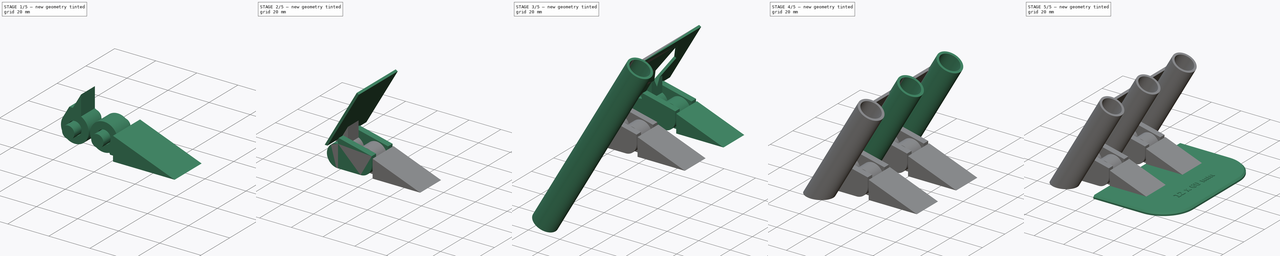
[diagram: build sequence overview — one tinted view per stage of 5, left to right]
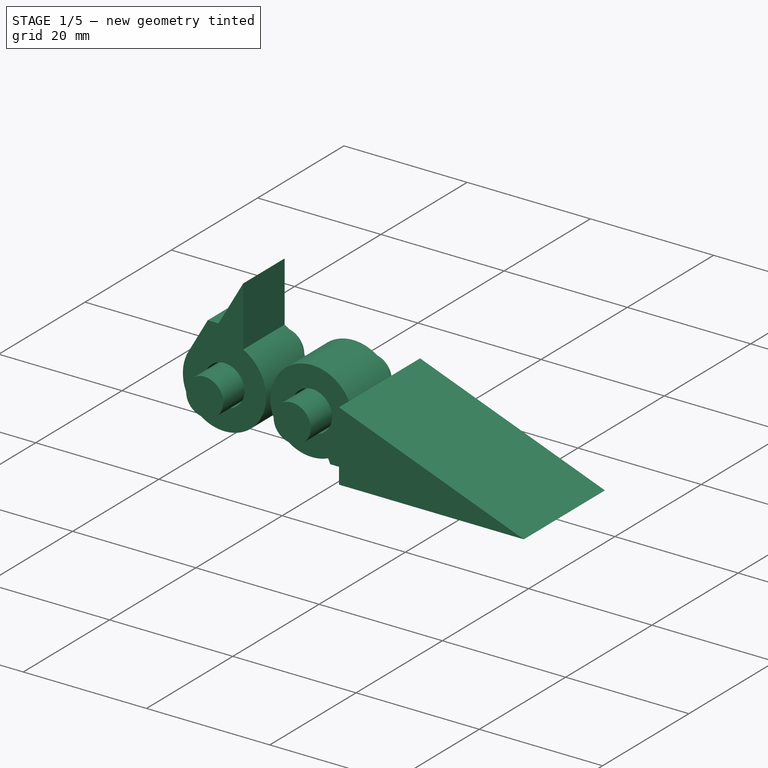
[diagram: stage 1 of 5 — iso view after this stage's code; geometry added in this stage tinted green]
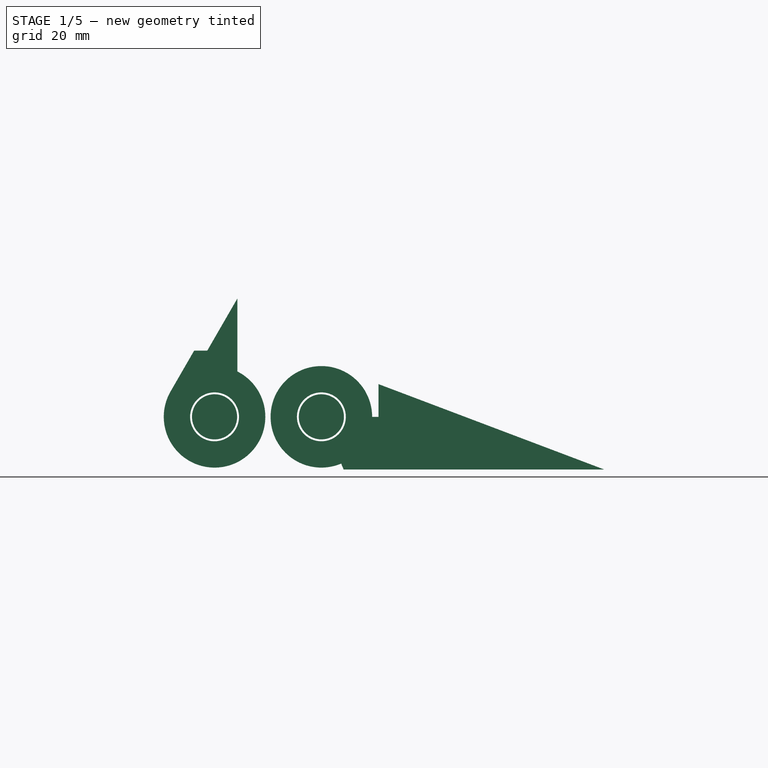
[diagram: stage 1 of 5 — front view after this stage's code; geometry added in this stage tinted green]
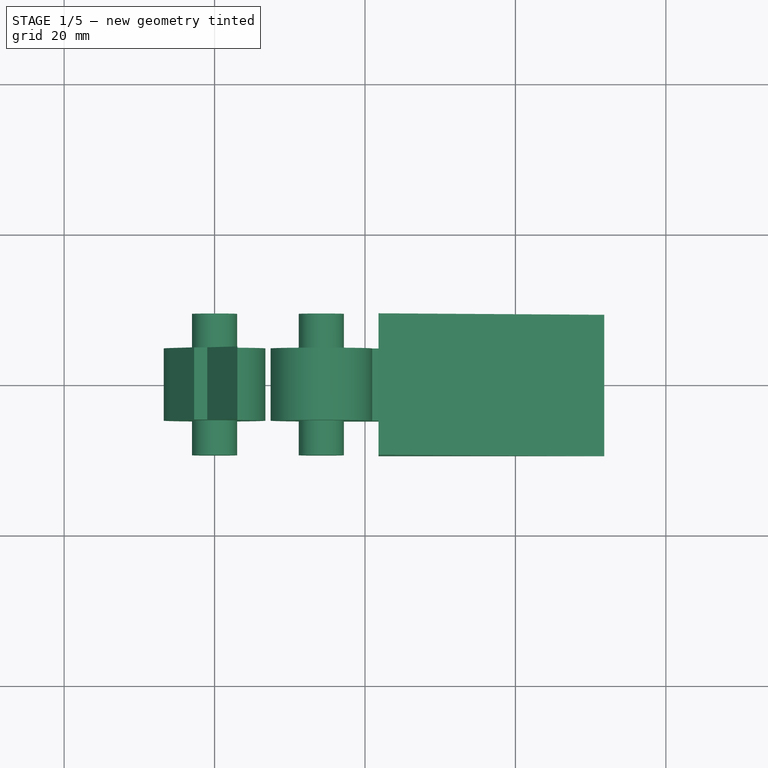
[diagram: stage 1 of 5 — top view after this stage's code; geometry added in this stage tinted green]
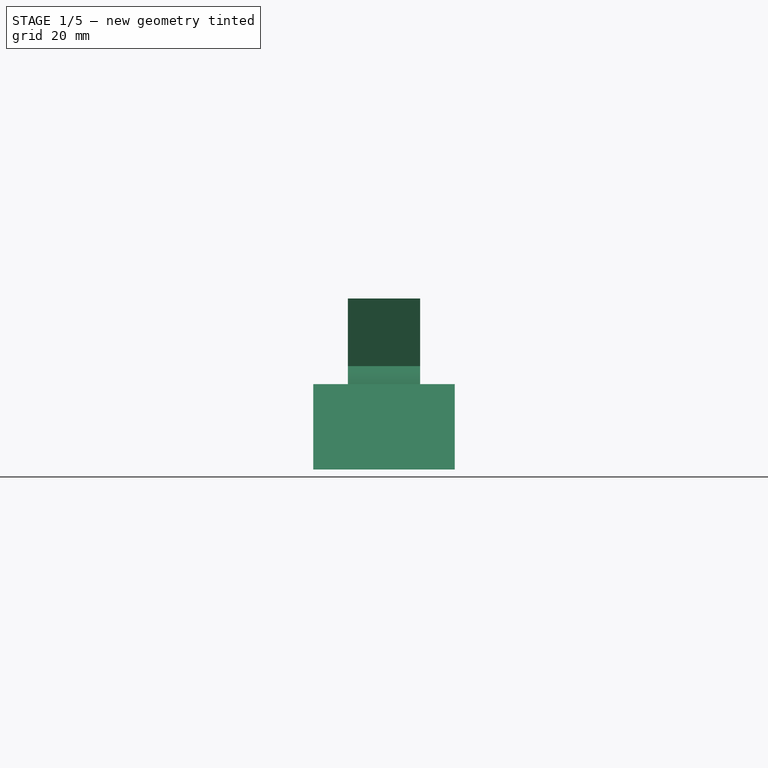
[diagram: stage 1 of 5 — right view after this stage's code; geometry added in this stage tinted green]
FCSTD DOCUMENT  (FreeCAD 1.1R14555 (Git shallow))
Label: DriverStandv2a
License: All rights reserved
LicenseURL: https://en.wikipedia.org/wiki/All_rights_reserved
objects: PartDesign::Pad×10, Sketcher::SketchObject×5, PartDesign::SubShapeBinder×3, PartDesign::Pocket×2, PartDesign::LinearPattern×2, App::Point×1, Spreadsheet::Sheet×1, Part::Part2DObjectPython×1, Part::DatumPlane×1, PartDesign::Chamfer×1, PartDesign::Body×1
note: 58 computed .brp shape members not serialized (recipe doc carries the construction recipe); baked Part::Feature solids carry a one-line shape summary decoded from their .brp

FEATURE [App::Point] Origin001
  Role = Origin
FEATURE [Sketcher::SketchObject] Sketch001  label="MasterSketch"
  ArcFitTolerance = 1e-06
  AttachmentSupport = -> [Origin]
  ExternalTypes = [0]
  FullyConstrained = true
  MakeInternals = false
  MapMode = 5
  Placement = pos=(0,0,0) rot=(1,0,0;1.5708rad)
  expr: .Constraints.TubeSketchOffset = <<params>>.TubeLength - 10 mm
  expr: Constraints[0] = <<params>>.PinInnerDia
  expr: Constraints[118] = <<params>>.StopClearance
  expr: Constraints[119] = <<params>>.HingeOuterDia / 2 + 3 * <<params>>.StopClearance
  expr: Constraints[11] = <<params>>.MinBaseLength
  expr: Constraints[12] = <<params>>.HingeSeparation
  expr: Constraints[135] = <<params>>.WallThickness + 0.7 * <<params>>.StopClearance
  expr: Constraints[14] = <<params>>.HingeOuterGap
  expr: Constraints[22] = <<params>>.HingeOuterDia
  expr: Constraints[36] = 2 * <<params>>.StopClearance
  expr: Constraints[51] = <<params>>.PinOuterDia
  expr: Constraints[52] = <<params>>.TubeAngle
  expr: Constraints[64] = <<params>>.HingeOuterDia / 2
  expr: Constraints[6] = <<params>>.HingeInnerDia
  expr: Constraints[79] = <<params>>.TubeOutsideDia
  expr: Constraints[84] = <<params>>.WallThickness
  expr: Constraints[88] = 90 + <<params>>.TubeAngle
  expr: Constraints[8] = <<params>>.PinOuterDia + 0.5 mm
  sketch-geometry (49):
    g0: Circle CenterX=0 CenterY=7 CenterZ=0 NormalX=0 NormalY=0 NormalZ=1 AngleXU=0 Radius=3.25
    g1: Circle CenterX=14.2 CenterY=7 CenterZ=0 NormalX=0 NormalY=0 NormalZ=1 AngleXU=0 Radius=3.25
    g2: LineSegment StartX=17.1597 StartY=0 StartZ=0 EndX=21.8 EndY=0 EndZ=0
    g3: LineSegment StartX=21.8 StartY=11.3486 StartZ=0 EndX=51.8 EndY=0 EndZ=0
    g4: LineSegment StartX=-5.84567 StartY=10.375 StartZ=0 EndX=-2.71355 EndY=15.8 EndZ=0
    g5: Circle CenterX=0 CenterY=7 CenterZ=0 NormalX=0 NormalY=0 NormalZ=1 AngleXU=0 Radius=3
    g6: Circle CenterX=14.2 CenterY=7 CenterZ=0 NormalX=0 NormalY=0 NormalZ=1 AngleXU=0 Radius=3
    g7: ArcOfCircle CenterX=14.2 CenterY=7 CenterZ=0 NormalX=0 NormalY=0 NormalZ=1 AngleXU=0 Radius=7 StartAngle=4.71239 EndAngle=6.28319
    g8: Circle CenterX=0 CenterY=7 CenterZ=0 NormalX=0 NormalY=0 NormalZ=1 AngleXU=0 Radius=6.75
    g9: Circle CenterX=14.2 CenterY=7 CenterZ=0 NormalX=0 NormalY=0 NormalZ=1 AngleXU=0 Radius=6.75
    g10: Circle [constr] CenterX=0 CenterY=7 CenterZ=0 NormalX=0 NormalY=0 NormalZ=1 AngleXU=0 Radius=3.5
    g11: LineSegment StartX=21.8 StartY=7 StartZ=0 EndX=21.8 EndY=0 EndZ=0
    g12: ArcOfCircle [constr] CenterX=0 CenterY=7 CenterZ=0 NormalX=0 NormalY=0 NormalZ=1 AngleXU=0 Radius=7 StartAngle=4.71239 EndAngle=6.28319
    g13: ArcOfCircle [constr] CenterX=14.2 CenterY=7 CenterZ=0 NormalX=0 NormalY=0 NormalZ=1 AngleXU=0 Radius=7 StartAngle=3.14159 EndAngle=4.71239
    g14: GeomPoint X=16.9261 Y=0.552632 Z=0
    g15: LineSegment StartX=21.8 StartY=0 StartZ=0 EndX=51.8 EndY=0 EndZ=0
    g16: LineSegment StartX=-1.3e-15 StartY=0 StartZ=0 EndX=14.2 EndY=0 EndZ=0
    g17: Circle [constr] CenterX=14.2 CenterY=7 CenterZ=0 NormalX=0 NormalY=0 NormalZ=1 AngleXU=0 Radius=3.5
    g18: ArcOfCircle [constr] CenterX=0 CenterY=7 CenterZ=0 NormalX=0 NormalY=0 NormalZ=1 AngleXU=0 Radius=7 StartAngle=0 EndAngle=1.5708
    g19: LineSegment StartX=0.44712 StartY=17.4144 StartZ=0 EndX=21.2 EndY=12.5486 EndZ=0
    g20: LineSegment StartX=21.2 StartY=7 StartZ=0 EndX=21.2 EndY=12.5486 EndZ=0
    g21: LineSegment StartX=-5.84567 StartY=10.375 StartZ=0 EndX=-3.03109 EndY=8.75 EndZ=0
    g22: ArcOfCircle CenterX=14.2 CenterY=7 CenterZ=0 NormalX=0 NormalY=0 NormalZ=1 AngleXU=0 Radius=3.5 StartAngle=5.11241 EndAngle=6.28319
    g23: LineSegment StartX=21.8 StartY=11.3486 StartZ=0 EndX=21.8 EndY=7 EndZ=0
    g24: LineSegment StartX=21.8 StartY=7 StartZ=0 EndX=51.8 EndY=0 EndZ=0
    g25: LineSegment [constr] StartX=0 StartY=7 StartZ=0 EndX=14.2 EndY=7 EndZ=0
    g26: LineSegment [constr] StartX=14.2 StartY=7 StartZ=0 EndX=21.2 EndY=7 EndZ=0
    g27: LineSegment StartX=18.8021 StartY=50.0463 StartZ=0 EndX=3.03109 EndY=22.73 EndZ=0
    g28: LineSegment [constr] StartX=-11.8357 StartY=0 StartZ=0 EndX=17.4944 EndY=50.8013 EndZ=0
    g29: LineSegment StartX=-2.71355 StartY=15.8 StartZ=0 EndX=17.4944 EndY=50.8013 EndZ=0
    g30: LineSegment [constr] StartX=14.2 StartY=7 StartZ=0 EndX=15.7979 EndY=13.8152 EndZ=0
    g31: ArcOfCircle [constr] CenterX=14.2 CenterY=7 CenterZ=0 NormalX=0 NormalY=0 NormalZ=1 AngleXU=0 Radius=7 StartAngle=0 EndAngle=3.14159
    g32: LineSegment StartX=0.44712 StartY=17.4144 StartZ=0 EndX=-0.484974 EndY=15.8 EndZ=0
    g33: ArcOfCircle CenterX=0 CenterY=7 CenterZ=0 NormalX=0 NormalY=0 NormalZ=1 AngleXU=0 Radius=7 StartAngle=1.5708 EndAngle=4.71239
    g34: LineSegment [constr] StartX=-7.50555 StartY=7.5 StartZ=0 EndX=5.48483 EndY=-9e-16 EndZ=0
    g35: LineSegment StartX=17.4944 StartY=50.8013 StartZ=0 EndX=18.8021 EndY=50.0463 EndZ=0
    g36: LineSegment StartX=-0.484974 StartY=15.8 StartZ=0 EndX=5e-16 EndY=14 EndZ=0
    g37: ArcOfCircle CenterX=0 CenterY=7 CenterZ=0 NormalX=0 NormalY=0 NormalZ=1 AngleXU=0 Radius=3.5 StartAngle=0.523599 EndAngle=2.61799
    g38: LineSegment StartX=3.03109 StartY=8.75 StartZ=0 EndX=3.03109 EndY=22.73 EndZ=0
    g39: LineSegment StartX=3.03109 StartY=22.73 StartZ=0 EndX=-0.969948 EndY=15.8 EndZ=0
    g40: LineSegment StartX=-2.71355 StartY=15.8 StartZ=0 EndX=-0.969948 EndY=15.8 EndZ=0
    g41: LineSegment [constr] StartX=7.45 StartY=7 StartZ=0 EndX=7.45 EndY=15.7725 EndZ=0
    g42: LineSegment [constr] StartX=0.44712 StartY=17.4144 StartZ=0 EndX=0.44712 EndY=7 EndZ=0
    g43: LineSegment StartX=15.563 StartY=3.77632 StartZ=0 EndX=17.1597 EndY=0 EndZ=0
    g44: LineSegment StartX=17.7 StartY=7 StartZ=0 EndX=21.8 EndY=7 EndZ=0
    g45: LineSegment [constr] StartX=-1.3e-15 StartY=0 StartZ=0 EndX=-8.87676 EndY=5.125 EndZ=0
    g46: LineSegment [constr] StartX=-0.484974 StartY=15.8 StartZ=0 EndX=-2.1564 EndY=16.765 EndZ=0
    g47: LineSegment [constr] StartX=7.45 StartY=15.7725 StartZ=0 EndX=-0.184572 EndY=20.1803 EndZ=0
    g48: LineSegment [constr] StartX=-0.969948 StartY=15.8 StartZ=0 EndX=-0.484974 EndY=15.8 EndZ=0
  constraints (137):
    c: Diameter(g5) = 6
    c: Coincident(g6,g1)
    c: Equal(g6,g5)
    c: Coincident(g16,g7)
    c: Coincident(g1,g7)
    c: Coincident(g9,g1)
    c: Diameter(g9) = 13.5
    c: Equal(g9,g8)
    c: Diameter(g10) = 7
    c: Vertical(g16,g1)
    c: Horizontal(g2,g16)
    c: DistanceX(g3,g3) = 30
    c: DistanceX(g12,g13) = 0.2
    c: Coincident(g13,g16)
    c: Distance(g14,g2) = 0.6
    c: Horizontal(g2)
    c: Horizontal(g15)
    c: Coincident(g2,g15)
    c: Coincident(g2,g11)
    c: Horizontal(g16)
    c: Coincident(g17,g13)
    c: Equal(g10,g17)
    c: Diameter(g7) = 14
    c: Coincident(g7,g20)
    c: PointOnObject(g14,g7)
    c: Vertical(g11)
    c: PointOnObject(g31,g7)
    c: Coincident(g3,g15)
    c: PointOnObject(g22,g17)
    c: Coincident(g22,g1)
    c: Vertical(g20)
    c: Coincident(g23,g3)
    c: Coincident(g23,g11)
    c: Vertical(g23)
    c: Coincident(g24,g11)
    c: Coincident(g24,g3)
    c: DistanceY(g3,g20) = 1.2
    c: Perpendicular(g10,g21)
    c: Coincident(g1,g25)
    c: Horizontal(g25)
    c: Coincident(g26,g1)
    c: Coincident(g26,g7)
    c: Horizontal(g26)
    c: Coincident(g25,g10)
    c: Coincident(g25,g0)
    c: Coincident(g25,g5)
    c: Coincident(g25,g8)
    c: Coincident(g12,g0)
    c: PointOnObject(g0,g-2)
    c: Coincident(g12,g-1)
    c: Equal(g0,g1)
    c: Diameter(g0) = 6.5
    c: Angle(g-1,g4) = 1.0472
    c: Coincident(g4,g21)
    c: Tangent(g4,g8) = 1.5708
    c: PointOnObject(g12,g25)
    c: Coincident(g28,g29)
    c: Parallel(g28,g4)
    c: Coincident(g4,g29)
    c: Coincident(g13,g1)
    c: PointOnObject(g22,g26)
    c: Coincident(g30,g1)
    c: PointOnObject(g30,g19)
    c: Perpendicular(g19,g30)
    c: Distance(g30,g30) = 7
    c: Coincident(g20,g19)
    c: Coincident(g1,g31)
    c: PointOnObject(g31,g25)
    c: Coincident(g32,g19)
    c: Coincident(g16,g12)
    c: PointOnObject(g13,g25)
    c: Tangent(g33,g18) = -1.5708
    c: Tangent(g12,g18) = -1.5708
    c: Tangent(g33,g12) = -1.5708
    c: PointOnObject(g28,g-1)
    c: PointOnObject(g34,g28)
    c: PointOnObject(g34,g-1)
    c: Perpendicular(g28,g34)
    c: Distance(g34,g29) = 50  'TubeSketchOffset'
    c: Distance(g34,g34) = 15
    c: PointOnObject(g4,g28)
    c: Coincident(g35,g28)
    c: Coincident(g35,g27)
    c: Perpendicular(g29,g35)
    c: Distance(g35,g35) = 1.51
    c: Coincident(g36,g32)
    c: Coincident(g36,g18)
    c: PointOnObject(g21,g10)
    c: Angle(g-2,g32) = 2.61799
    c: Coincident(g37,g33)
    c: Coincident(g37,g21)
    c: Coincident(g38,g37)
    c: Vertical(g38)
    c: Perpendicular(g27,g35)
    c: Perpendicular(g39,g35)
    c: Coincident(g27,g39)
    c: Coincident(g27,g38)
    c: Horizontal(g37,g21)
    c: PointOnObject(g18,g-2)
    c: Coincident(g40,g4)
    c: Coincident(g40,g39)
    c: Horizontal(g40)
    c: Equal(g36,g32)
    c: PointOnObject(g41,g25)
    c: PointOnObject(g41,g19)
    c: PointOnObject(g41,g9)
    c: Vertical(g41)
    c: Coincident(g42,g19)
    c: PointOnObject(g42,g25)
    c: Vertical(g42)
    c: PointOnObject(g31,g26)
    c: Coincident(g43,g2)
    c: PointOnObject(g14,g43)
    c: Coincident(g22,g43)
    c: Perpendicular(g22,g43)
    c: Coincident(g44,g22)
    c: Coincident(g44,g11)
    c: Horizontal(g44)
    c: Distance(g31,g11) = 0.6
    c: DistanceY(g18,g39) = 8.8
    c: Coincident(g45,g12)
    c: PointOnObject(g45,g28)
    c: Perpendicular(g28,g45)
    c: Distance(g4,g28) = 40.416  'WallHeight'
    c: Coincident(g46,g32)
    c: PointOnObject(g46,g29)
    c: Perpendicular(g29,g46)
    c: DistanceX(g28,g-1) = 11.8357  'WallPlaneOffset'
    c: Coincident(g47,g41)
    c: PointOnObject(g47,g29)
    c: Perpendicular(g29,g47)
    c: Distance(g47,g47) = 8.81564  'WallCutDepth'
    c: Distance(g4,g28) = 18.2443  'WallOffset'
    c: Coincident(g48,g39)
    c: Coincident(g48,g32)
    c: Distance(g46,g46) = 1.93
    c: Horizontal(g48)
FEATURE [Spreadsheet::Sheet] Spreadsheet  label="params"
  cells = A11='Model; B11='NumberOfTubes; C11='TubeLength; D11='TubeWallThickness; E11='TubeInsideDia; F11='TubeOutsideDia; G11='TubeSeparationDistance; H11='TubeAngle; I11='TubesWidth; J11='NumberOfHinges; K11='HingeInnerDia; L11='HingeOuterDia; M11='PinInnerDia; N11='PinGap; O11='PinOuterDia; P11='HingeOuterGap; Q11='HingeSeparation; R11='HingeWidth; S11='HingeOutsideWidth; T11='HingeInsideWidth; U11='HingesDistance; V11='BaseWidth; W11='BaseLength; X11='BaseThickness; Y11='BaseRadius; Z11='BaseClearance; AA11='BaseOffset; AB11='WallThickness; AC11='WallHeight; AD11='WallLength; AE11='MinBaseLength; AF11='MinWallHeight; AG11='StopClearance; AH11='Title; AI11='TitleHeight; A12(Model)==hiddenref(Body.Model.String); B12(NumberOfTubes)==.B36; C12(TubeLength)==.C36; D12(TubeWallThickness)==.D36; E12(TubeInsideDia)==.E36; F12(TubeOutsideDia)==.F36; G12(TubeSeparationDistance)==.G36; H12(TubeAngle)==.H36; I12(TubesWidth)==.I36; J12(NumberOfHinges)==.J36; K12(HingeInnerDia)==.K36; L12(HingeOuterDia)==.L36; M12(PinInnerDia)==.M36; N12(PinGap)==.N36; O12(PinOuterDia)==.O36; P12(HingeOuterGap)==.P36; Q12(HingeSeparation)==.Q36; R12(HingeWidth)==.R36; S12(HingeOutsideWidth)==.S36; T12(HingeInsideWidth)==.T36; U12(HingesDistance)==.U36; V12(BaseWidth)==.V36; W12(BaseLength)==.W36; X12(BaseThickness)==.X36; Y12(BaseRadius)==.Y36; Z12(BaseClearance)==.Z36; AA12(BaseOffset)==.AA36; AB12(WallThickness)==.AB36; AC12(WallHeight)==.AC36; AD12(WallLength)==.AD36; AE12(MinBaseLength)==.AE36; AF12(MinWallHeight)==.AF36; AG12(StopClearance)==.AG36; AH12(Title)==.AH36; AI12(TitleHeight)==.AI36; A13='6.5x75mm by 3; B13=3; C13==75 mm; D13==1.5 mm; E13==6.5 mm; F13==$E13 + 2 * $D13; G13==25 mm; H13=60; I13==($B13 - 1) * $G13; J13==$B13 - 1; K13==$L13 - 0.5 mm; L13==10 mm; M13==5.5 mm; N13==0.5 mm; O13==$M13 + $N13; P13==0.6 mm; Q13==0.1 mm; R13==$G13 - $F13 - 2 * $P13; S13==4 mm; T13==$R13 - 2 * $S13 - 2 * $P13; U13==($B13 - 1) * $G13 - $F13 - $R13 - 2 * $P13; V13==($B13 - 1) * $G13 + $F13; W13==70 mm; X13==2 mm; Y13==20 mm; Z13==0.4 mm; AA13==$L13 * 1.5 + $Q13 + $Z13; AB13==$D13 + 0.01 mm; AC13==$C13 - 10 mm - $L13 / 2; AD13==($B13 - 1) * $G13; AE13==30 mm; AF13==20 mm; AG13==0.6 mm; AH13==<<%g x >> % $E13 + <<%d mm>> % $C13; AI13==0.4 mm; A14='6.5x75mm by 4; B14=4; C14==75 mm; D14==1.5 mm; E14==6.5 mm; F14==$E14 + 2 * $D14; G14==25 mm; H14=60; I14==($B14 - 1) * $G14; J14==$B14 - 1; K14==$L14 - 0.5 mm; L14==10 mm; M14==5.5 mm; N14==0.5 mm; O14==$M14 + $N14; P14==0.6 mm; Q14==0.1 mm; R14==$G14 - $F14 - 2 * $P14; S14==4 mm; T14==$R14 - 2 * $S14 - 2 * $P14; U14==($B14 - 1) * $G14 - $F14 - $R14 - 2 * $P14; V14==($B14 - 1) * $G14 + $F14; W14==70 mm; X14==2 mm; Y14==20 mm; Z14==0.4 mm; AA14==$L14 * 1.5 + $Q14 + $Z14; AB14==$D14 + 0.01 mm; AC14==$C14 - 10 mm - $L14 / 2; AD14==($B14 - 1) * $G14; AE14==30 mm; AF14==20 mm; AG14==0.6 mm; AH14==<<%g x >> % $E14 + <<%d mm>> % $C14; AI14==0.4 mm; A15='6.5x75mm by 5; B15=5; C15==75 mm; D15==1.5 mm; E15==6.5 mm; F15==$E15 + 2 * $D15; G15==25 mm; H15=60; I15==($B15 - 1) * $G15; J15==$B15 - 1; K15==$L15 - 0.5 mm; L15==10 mm; M15==5.5 mm; N15==0.5 mm; O15==$M15 + $N15; P15==0.6 mm; Q15==0.1 mm; R15==$G15 - $F15 - 2 * $P15; S15==4 mm; T15==$R15 - 2 * $S15 - 2 * $P15; U15==($B15 - 1) * $G15 - $F15 - $R15 - 2 * $P15; V15==($B15 - 1) * $G15 + $F15; W15==70 mm; X15==2 mm; Y15==20 mm; Z15==0.4 mm; AA15==$L15 * 1.5 + $Q15 + $Z15; AB15==$D15 + 0.01 mm; AC15==$C15 - 10 mm - $L15 / 2; AD15==($B15 - 1) * $G15; AE15==30 mm; AF15==20 mm; AG15==0.6 mm; AH15==<<%g x >> % $E15 + <<%d mm>> % $C15; AI15==0.4 mm; A16='6.5x75mm by 6; B16=6; C16==75 mm; D16==1.5 mm; E16==6.5 mm; F16==$E16 + 2 * $D16; G16==25 mm; H16=60; I16==($B16 - 1) * $G16; J16==$B16 - 1; K16==$L16 - 0.5 mm; L16==10 mm; M16==5.5 mm; N16==0.5 mm; O16==$M16 + $N16; P16==0.6 mm; Q16==0.1 mm; R16==$G16 - $F16 - 2 * $P16; S16==4 mm; T16==$R16 - 2 * $S16 - 2 * $P16; U16==($B16 - 1) * $G16 - $F16 - $R16 - 2 * $P16; V16==($B16 - 1) * $G16 + $F16; W16==70 mm; X16==2 mm; Y16==20 mm; +1200 more cells
  expr: .cells.Bind.B12.ZZ12 = tuple(.cells; <<B>> + str(hiddenref(Body.Model) + 13); <<ZZ>> + str(hiddenref(Body.Model) + 13))
FEATURE [Sketcher::SketchObject] Sketch003  label="BaseSketch"
  ArcFitTolerance = 1e-06
  AttachmentSupport = -> [Origin]
  ExternalTypes = [0,0,0,0,0]
  FullyConstrained = true
  MakeInternals = false
  MapMode = 5
  expr: Constraints[0] = <<params>>.BaseWidth
  expr: Constraints[10] = <<params>>.BaseRadius
  expr: Constraints[14] = <<params>>.BaseOffset
  expr: Constraints[16] = (<<params>>.TubeSeparationDistance + <<params>>.TubeOutsideDia) / 2
  expr: Constraints[9] = <<params>>.BaseLength
  sketch-geometry (7):
    g0: LineSegment StartX=75 StartY=40 StartZ=0 EndX=75 EndY=-5 EndZ=0
    g1: LineSegment StartX=21.6 StartY=60 StartZ=0 EndX=21.6 EndY=-25 EndZ=0
    g2: LineSegment [constr] StartX=0 StartY=17.5 StartZ=0 EndX=75 EndY=17.5 EndZ=0
    g3: LineSegment StartX=21.6 StartY=-25 StartZ=0 EndX=55 EndY=-25 EndZ=0
    g4: LineSegment StartX=21.6 StartY=60 StartZ=0 EndX=55 EndY=60 EndZ=0
    g5: ArcOfCircle CenterX=55 CenterY=40 CenterZ=0 NormalX=0 NormalY=0 NormalZ=1 AngleXU=0 Radius=20 StartAngle=3e-16 EndAngle=1.5708
    g6: ArcOfCircle CenterX=55 CenterY=-5 CenterZ=0 NormalX=0 NormalY=0 NormalZ=1 AngleXU=0 Radius=20 StartAngle=4.71239 EndAngle=6.28319
  constraints (18):
    c: DistanceY(g1,g1) = 85
    c: Symmetric(g0,g0,g2)
    c: Symmetric(g1,g1,g2)
    c: Coincident(g3,g1)
    c: Horizontal(g3)
    c: Coincident(g4,g1)
    c: Tangent(g6,g3) = -1.5708
    c: Tangent(g6,g0) = 1.5708
    c: Tangent(g5,g4) = 1.5708
    c: DistanceX(g-1,g0) = 75
    c: Radius(g5) = 20
    c: Tangent(g5,g0) = 1.5708
    c: Equal(g5,g6)
    c: Vertical(g0)
    c: DistanceX(g-1,g1) = 21.6
    c: PointOnObject(g2,g-2)
    c: DistanceY(g1,g-1) = 25
    c: PointOnObject(g2,g0)
FEATURE [Part::Part2DObjectPython] ShapeString  label="LabelShapeString"  # Draft 2D object (typed FeaturePython)
  AttachmentOffset = pos=(60,17.5,2) rot=(0,0,1;1.5708rad)
  AttachmentSupport = -> [Origin]
  FontFile = <path>
  Fuse = false
  Justification = 4
  JustificationReference = 0
  KeepLeftMargin = false
  MakeFace = true
  MapMode = 5
  ObliqueAngle = 0
  Placement = pos=(60,17.5,2) rot=(0,0,1;1.5708rad)
  ScaleToSize = true
  Size = 4
  String = 12 x 60 mm
  Tracking = 0
  expr: .AttachmentOffset.Base.x = <<params>>.BaseLength - 15 mm
  expr: .AttachmentOffset.Base.y = (<<params>>.NumberOfHinges - 1) * <<params>>.TubeSeparationDistance / 2
  expr: .AttachmentOffset.Base.z = <<params>>.BaseThickness
  expr: String = <<params>>.Title
FEATURE [PartDesign::SubShapeBinder] Binder003  label="LeftBinder"
  BindCopyOnChange = 0
  BindMode = 0
  ClaimChildren = false
  Context = -> Body [Binder003.]
  Fuse = false
  MakeFace = true
  OffsetFill = false
  OffsetIntersection = false
  OffsetJoinType = 0
  OffsetOpenResult = false
  PartialLoad = false
  Placement = pos=(0,-9.4,0) rot=(0,0,1;0rad)
  Refine = true
  Relative = true
  Support = -> [Sketch001]
  _Version = 2
  expr: .Placement.Base.y = -(<<params>>.HingeWidth / 2)
FEATURE [PartDesign::SubShapeBinder] Binder004  label="CenterBinder"
  BindCopyOnChange = 0
  BindMode = 0
  ClaimChildren = false
  Context = -> Body [Binder004.]
  Fuse = false
  MakeFace = true
  OffsetFill = false
  OffsetIntersection = false
  OffsetJoinType = 0
  OffsetOpenResult = false
  PartialLoad = false
  Refine = true
  Relative = true
  Support = -> [Sketch001]
  _Version = 2
FEATURE [PartDesign::SubShapeBinder] Binder005  label="RightBinder"
  BindCopyOnChange = 0
  BindMode = 0
  ClaimChildren = false
  Context = -> Body [Binder005.]
  Fuse = false
  MakeFace = true
  OffsetFill = false
  OffsetIntersection = false
  OffsetJoinType = 0
  OffsetOpenResult = false
  PartialLoad = false
  Placement = pos=(0,9.4,0) rot=(0,0,1;0rad)
  Refine = true
  Relative = true
  Support = -> [Sketch001]
  _Version = 2
  expr: .Placement.Base.y = <<params>>.HingeWidth / 2
FEATURE [PartDesign::Pad] Pad  label="PinsPad"
  Direction = (0,1,0)
  Length = 18.8
  Length2 = 10
  Profile = -> Binder004 [Edge21,Edge22,Edge4,Edge9,Edge11,Edge3]
  Refine = true
  SideType = 2
  Suppressed = false
  Type = 0
  Type2 = 0
  expr: Length = <<params>>.HingeWidth
FEATURE [PartDesign::Pad] Pad020  label="PinionsPad"
  BaseFeature = -> Pad
  Direction = (0,1,-2e-16)
  Length = 9.6
  Length2 = 10
  Profile = -> Binder004 [Edge9,Edge5,Edge6,Edge7,Edge8,Edge14,Edge13,Edge12,Edge19,Edge20,Edge15]
  Refine = true
  SideType = 2
  Suppressed = false
  Type = 0
  Type2 = 0
  expr: Length = <<params>>.HingeInsideWidth
FEATURE [PartDesign::Pad] Pad021  label="SocketsPad"
  BaseFeature = -> Pad020
  Direction = (0,1,0)
  Length = 9.6
  Length2 = 10
  Profile = -> Binder004 [Edge31,Edge2,Edge30,Edge1]
  Refine = true
  SideType = 2
  Suppressed = false
  Type = 0
  Type2 = 0
  expr: Length = <<params>>.HingeInsideWidth
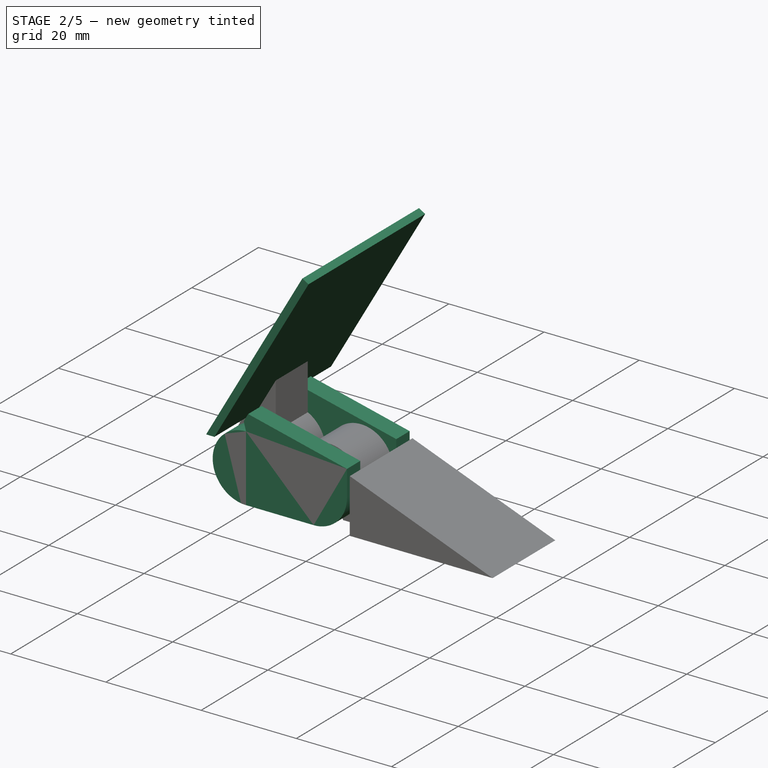
[diagram: stage 2 of 5 — iso view after this stage's code; geometry added in this stage tinted green]
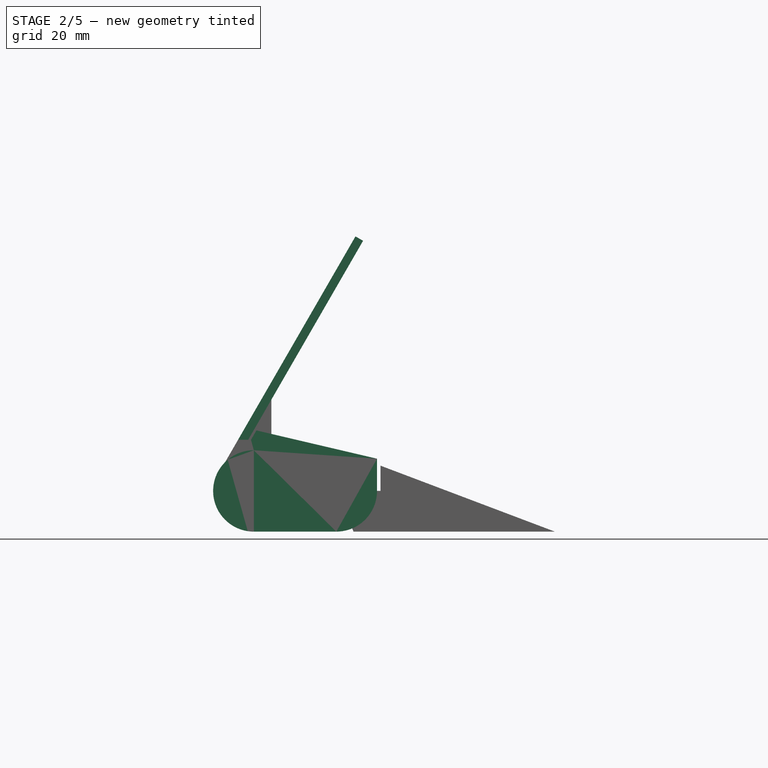
[diagram: stage 2 of 5 — front view after this stage's code; geometry added in this stage tinted green]
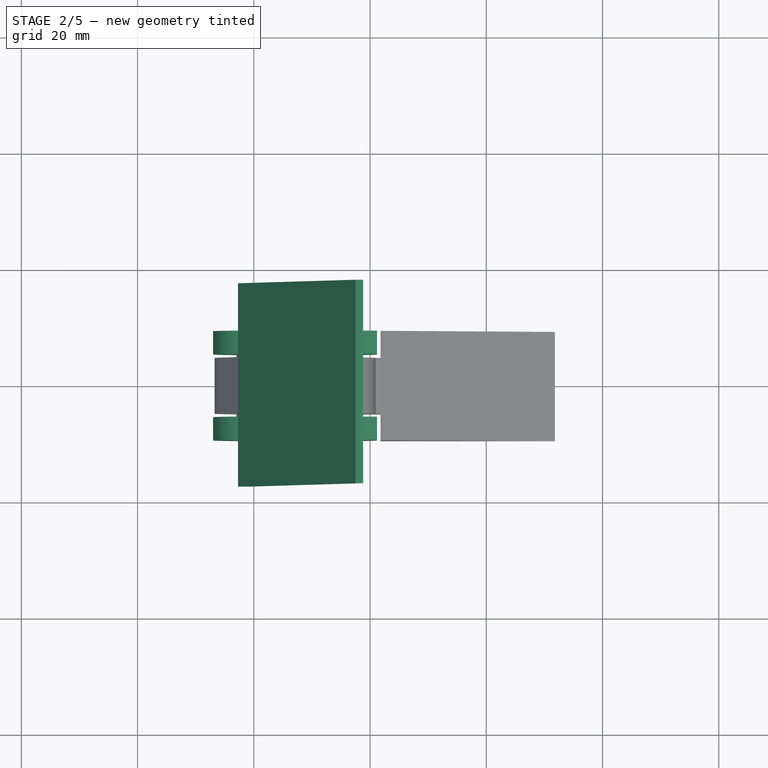
[diagram: stage 2 of 5 — top view after this stage's code; geometry added in this stage tinted green]
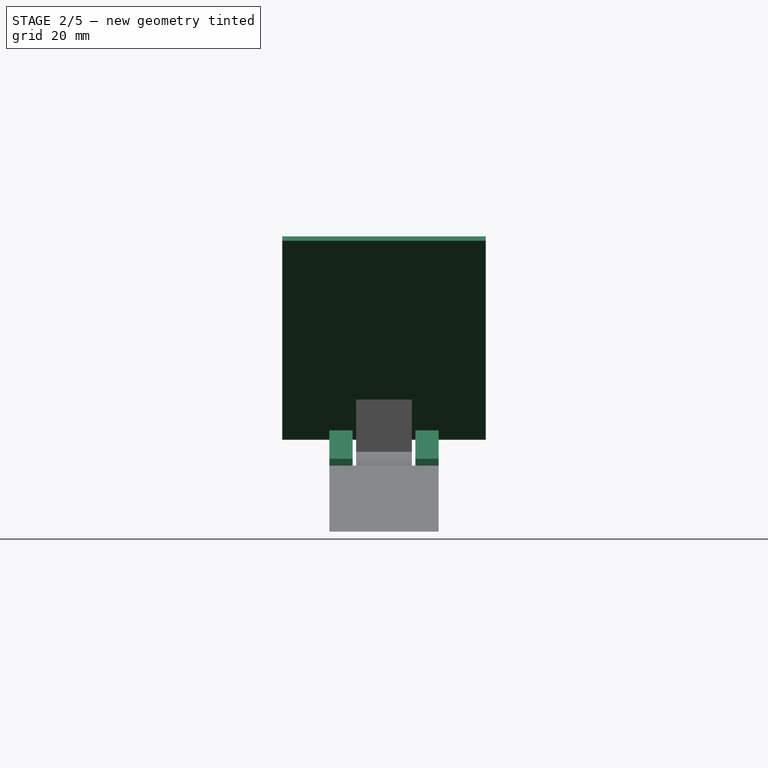
[diagram: stage 2 of 5 — right view after this stage's code; geometry added in this stage tinted green]
FEATURE [PartDesign::Pad] Pad022  label="WallPad"
  BaseFeature = -> Pad021
  Direction = (0,1,-2e-16)
  Length = 35
  Length2 = 10
  Profile = -> Binder004 [Edge20,Edge16,Edge19,Edge18,Edge17]
  Refine = true
  SideType = 2
  Suppressed = false
  Type = 0
  Type2 = 0
  expr: Length = <<params>>.TubeSeparationDistance
FEATURE [PartDesign::Pad] Pad023  label="LeftOuterPad"
  BaseFeature = -> Pad022
  Direction = (0,1,-2e-16)
  Length = 4
  Length2 = 10
  Profile = -> Binder003 [Edge29,Edge23,Edge24,Edge25,Edge26,Edge27,Edge28]
  Refine = true
  SideType = 0
  Suppressed = false
  Type = 0
  Type2 = 0
  expr: Length = <<params>>.HingeOutsideWidth
FEATURE [PartDesign::Pad] Pad024  label="RightOuterPad"
  BaseFeature = -> Pad023
  Direction = (0,1,-2e-16)
  Length = 4
  Length2 = 10
  Profile = -> Binder005 [Edge29,Edge23,Edge24,Edge25,Edge26,Edge27,Edge28]
  Refine = true
  Reversed = true
  SideType = 0
  Suppressed = false
  Type = 0
  Type2 = 0
  expr: Length = <<params>>.HingeOutsideWidth
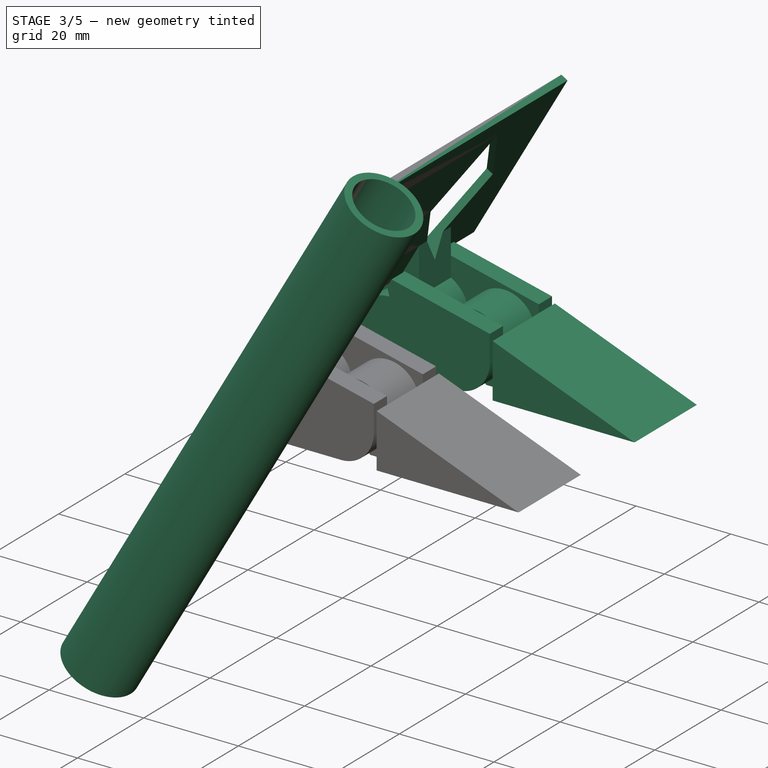
[diagram: stage 3 of 5 — iso view after this stage's code; geometry added in this stage tinted green]
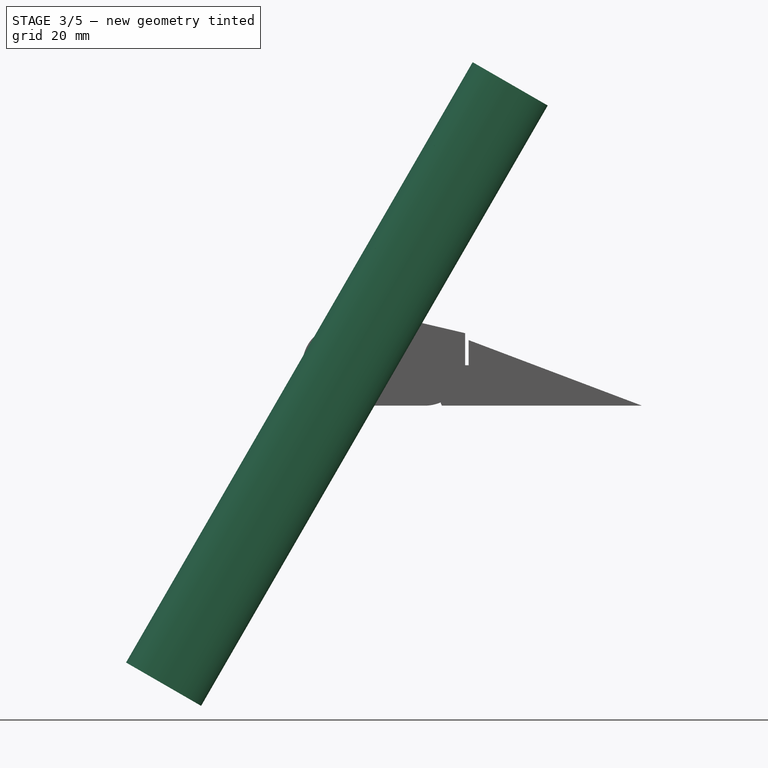
[diagram: stage 3 of 5 — front view after this stage's code; geometry added in this stage tinted green]
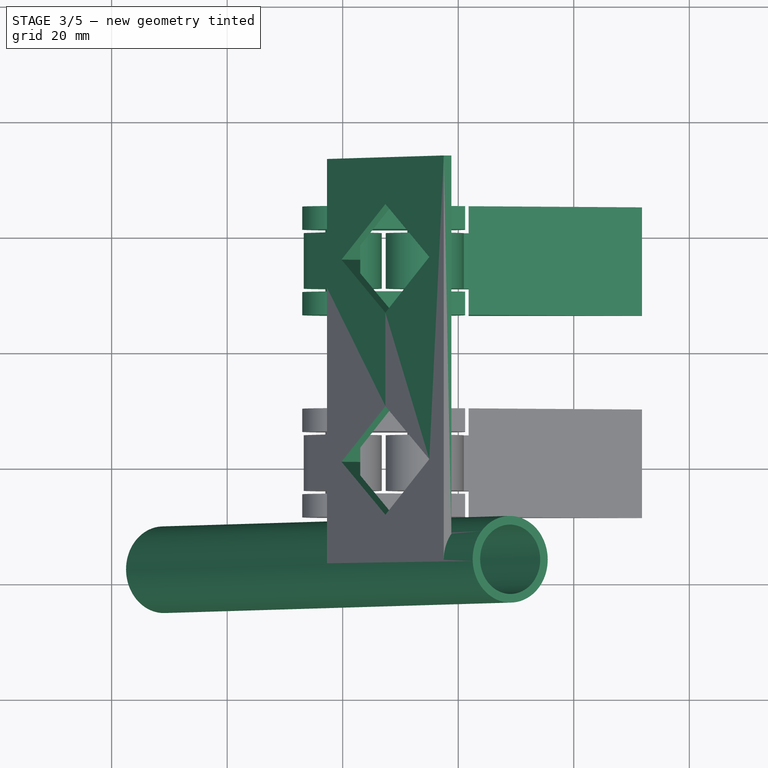
[diagram: stage 3 of 5 — top view after this stage's code; geometry added in this stage tinted green]
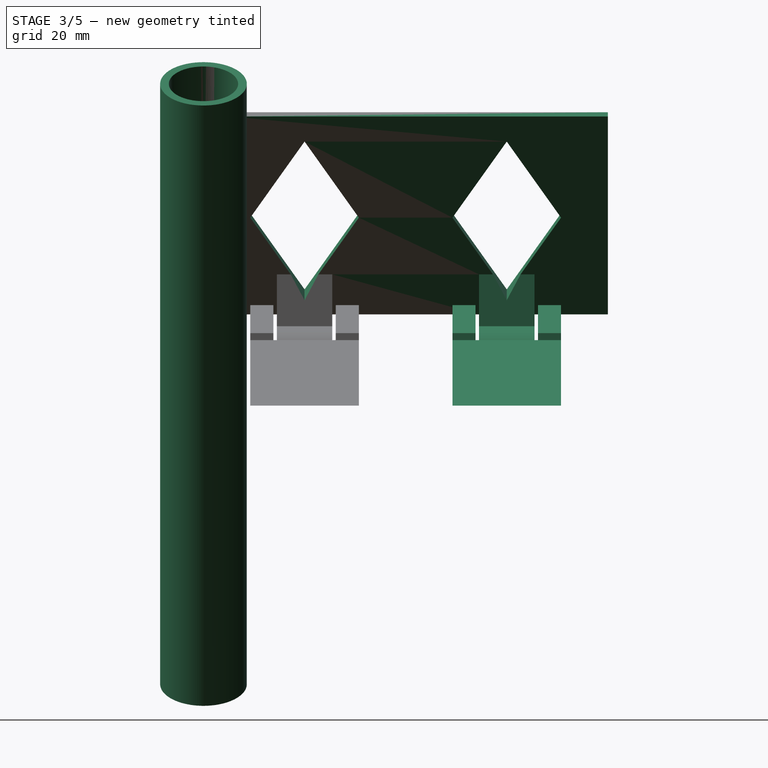
[diagram: stage 3 of 5 — right view after this stage's code; geometry added in this stage tinted green]
FEATURE [Sketcher::SketchObject] Sketch009  label="TubeCutoffSketch"
  ArcFitTolerance = 1e-06
  AttachmentSupport = -> [Origin]
  ExternalTypes = [0]
  FullyConstrained = true
  MakeInternals = false
  MapMode = 5
  Placement = pos=(0,0,0) rot=(1,0,0;1.5708rad)
  expr: Constraints[10] = <<params>>.TubeLength
  expr: Constraints[9] = <<params>>.TubeLength
  sketch-geometry (4):
    g0: LineSegment StartX=-60 StartY=0 StartZ=0 EndX=-60 EndY=-60 EndZ=0
    g1: LineSegment StartX=-60 StartY=-60 StartZ=0 EndX=60 EndY=-60 EndZ=0
    g2: LineSegment StartX=60 StartY=-60 StartZ=0 EndX=60 EndY=0 EndZ=0
    g3: LineSegment StartX=60 StartY=0 StartZ=0 EndX=-60 EndY=0 EndZ=0
  constraints (11):
    c: Coincident(g0,g1)
    c: Coincident(g1,g2)
    c: Coincident(g2,g3)
    c: Coincident(g3,g0)
    c: Vertical(g0)
    c: Vertical(g2)
    c: Horizontal(g3)
    c: PointOnObject(g0,g-1)
    c: Symmetric(g1,g0,g-2)
    c: DistanceX(g-1,g1) = 60
    c: DistanceY(g2,g2) = 60
FEATURE [Part::DatumPlane] DatumPlane  label="WallDatumPlane"
  AttachmentOffset = pos=(0,0,-11.8357) rot=(1,0,0;0.523599rad)
  AttachmentSupport = -> [Pad021]
  MapMode = 4
  Placement = pos=(-11.8357,0,0) rot=(0.654654,0.654654,0.377964;2.41886rad)
  expr: .AttachmentOffset.Base.z = -<<MasterSketch>>.Constraints.WallPlaneOffset
  expr: .AttachmentOffset.Rotation.Roll = 90 - <<params>>.TubeAngle
FEATURE [Sketcher::SketchObject] Sketch007  label="WallCutoutSketch"
  ArcFitTolerance = 1e-06
  AttachmentSupport = -> [DatumPlane]
  ExternalTypes = [0,0]
  FullyConstrained = true
  MakeInternals = false
  MapMode = 5
  Placement = pos=(-11.8357,0,0) rot=(0.654654,0.654654,0.377964;2.41886rad)
  expr: Constraints[10] = <<params>>.HingeWidth
  expr: Constraints[20] = <<params>>.TubeSeparationDistance
  expr: Constraints[21] = <<MasterSketch>>.Constraints.WallOffset
  expr: Constraints[22] = <<MasterSketch>>.Constraints.WallHeight
  sketch-geometry (11):
    g0: LineSegment [constr] StartX=0 StartY=53.6603 StartZ=0 EndX=0 EndY=23.2443 EndZ=0
    g1: LineSegment [constr] StartX=-9.4 StartY=38.4523 StartZ=0 EndX=9.4 EndY=38.4523 EndZ=0
    g2: GeomPoint [constr] X=0 Y=38.4523 Z=0
    g3: LineSegment StartX=0 StartY=53.6603 StartZ=0 EndX=9.4 EndY=38.4523 EndZ=0
    g4: LineSegment StartX=9.4 StartY=38.4523 StartZ=0 EndX=1.8e-15 EndY=23.2443 EndZ=0
    g5: LineSegment StartX=0 StartY=23.2443 StartZ=0 EndX=-9.4 EndY=38.4523 EndZ=0
    g6: LineSegment StartX=-9.4 StartY=38.4523 StartZ=0 EndX=0 EndY=53.6603 EndZ=0
    g7: LineSegment [constr] StartX=-17.5 StartY=58.6603 StartZ=0 EndX=-17.5 EndY=18.2443 EndZ=0
    g8: LineSegment [constr] StartX=-17.5 StartY=18.2443 StartZ=0 EndX=17.5 EndY=18.2443 EndZ=0
    g9: LineSegment [constr] StartX=17.5 StartY=18.2443 StartZ=0 EndX=17.5 EndY=58.6603 EndZ=0
    g10: LineSegment [constr] StartX=17.5 StartY=58.6603 StartZ=0 EndX=-17.5 EndY=58.6603 EndZ=0
  constraints (26):
    c: PointOnObject(g0,g-2)
    c: PointOnObject(g0,g-2)
    c: Symmetric(g0,g0,g1)
    c: Coincident(g3,g1)
    c: Coincident(g4,g1)
    c: Coincident(g4,g0)
    c: Coincident(g5,g0)
    c: Coincident(g5,g1)
    c: Coincident(g6,g1)
    c: Coincident(g6,g0)
    c: Distance(g1,g1) = 18.8
    c: Symmetric(g1,g1,g2)
    c: Coincident(g3,g0)
    c: Coincident(g7,g8)
    c: Coincident(g8,g9)
    c: Coincident(g9,g10)
    c: Coincident(g10,g7)
    c: Vertical(g9)
    c: Horizontal(g8)
    c: Symmetric(g9,g7,g-2)
    c: DistanceX(g10,g10) = 35
    c: DistanceY(g-1,g7) = 18.2443
    c: DistanceY(g9,g9) = 40.416
    c: Symmetric(g7,g7,g1)
    c: PointOnObject(g2,g-2)
    c: DistanceY(g0,g7) = 5
FEATURE [PartDesign::Pocket] Pocket002  label="WallCutoutPocket"
  BaseFeature = -> Pad024
  Direction = (-0.866025,0,0.5)
  Length = 8.81564
  Length2 = 5
  Profile = -> Sketch007
  ReferenceAxis = -> Sketch007 [N_Axis]
  Refine = true
  Reversed = true
  SideType = 0
  Suppressed = false
  Type = 0
  Type2 = 0
  expr: Length = <<MasterSketch>>.Constraints.WallCutDepth
FEATURE [Sketcher::SketchObject] Sketch008  label="TubeSketch"
  ArcFitTolerance = 1e-06
  AttachmentOffset = pos=(0,0,-50) rot=(0,0,1;0rad)
  AttachmentSupport = -> [Pocket002]
  ExternalGeometry = -> [Pocket002]
  ExternalTypes = [0]
  FullyConstrained = true
  MakeInternals = false
  MapMode = 5
  Placement = pos=(1.37121,1.78e-14,2.375) rot=(0,1,0;0.523599rad)
  expr: .AttachmentOffset.Base.z = -<<MasterSketch>>.Constraints.TubeSketchOffset
  expr: Constraints[0] = <<params>>.TubeOutsideDia
  expr: Constraints[30] = <<params>>.TubeInsideDia / 2
  expr: Constraints[4] = <<params>>.TubeInsideDia / 2 - <<params>>.TubeWallThickness
  sketch-geometry (17):
    g0: Circle CenterX=-2.75 CenterY=-17.5 CenterZ=0 NormalX=0 NormalY=0 NormalZ=1 AngleXU=0 Radius=7.5
    g1: ArcOfCircle CenterX=-2.75 CenterY=-17.5 CenterZ=0 NormalX=0 NormalY=0 NormalZ=1 AngleXU=0 Radius=4.5 StartAngle=0.785398 EndAngle=2.35619
    g2: ArcOfCircle CenterX=-2.75 CenterY=-17.5 CenterZ=0 NormalX=0 NormalY=0 NormalZ=1 AngleXU=0 Radius=4.5 StartAngle=3.92699 EndAngle=5.49779
    g3: LineSegment [constr] StartX=-5.93198 StartY=-14.318 StartZ=0 EndX=-5.93198 EndY=-20.682 EndZ=0
    g4: LineSegment [constr] StartX=0.431981 StartY=-14.318 StartZ=0 EndX=-5.93198 EndY=-14.318 EndZ=0
    g5: LineSegment StartX=-7.83675 StartY=-14.318 StartZ=0 EndX=-5.93198 EndY=-14.318 EndZ=0
    g6: LineSegment StartX=-7.83673 StartY=-20.682 StartZ=0 EndX=-5.93198 EndY=-20.682 EndZ=0
    g7: LineSegment StartX=0.431981 StartY=-20.682 StartZ=0 EndX=2.33673 EndY=-20.682 EndZ=0
    g8: LineSegment StartX=0.431981 StartY=-14.318 StartZ=0 EndX=2.33675 EndY=-14.318 EndZ=0
    g9: LineSegment [constr] StartX=-5.93198 StartY=-20.682 StartZ=0 EndX=0.431981 EndY=-20.682 EndZ=0
    g10: LineSegment [constr] StartX=0.431981 StartY=-20.682 StartZ=0 EndX=0.431981 EndY=-14.318 EndZ=0
    g11: ArcOfCircle CenterX=-2.75 CenterY=-17.5 CenterZ=0 NormalX=0 NormalY=0 NormalZ=1 AngleXU=0 Radius=6 StartAngle=0.55899 EndAngle=2.5826
    g12: ArcOfCircle CenterX=-2.75 CenterY=-17.5 CenterZ=0 NormalX=0 NormalY=0 NormalZ=1 AngleXU=0 Radius=5.99999 StartAngle=3.70058 EndAngle=5.72419
    g13: ArcOfCircle CenterX=-2.75 CenterY=-17.5 CenterZ=0 NormalX=0 NormalY=0 NormalZ=1 AngleXU=0 Radius=5.99999 StartAngle=2.5826 EndAngle=3.70059
    g14: ArcOfCircle CenterX=-2.75 CenterY=-17.5 CenterZ=0 NormalX=0 NormalY=0 NormalZ=1 AngleXU=0 Radius=5.99999 StartAngle=5.72419 EndAngle=6.84217
    g15: LineSegment [constr] StartX=-2.75 StartY=0 StartZ=0 EndX=-2.75 EndY=-17.5 EndZ=0
    g16: LineSegment [constr] StartX=-10.25 StartY=-17.5 StartZ=0 EndX=4.75 EndY=-17.5 EndZ=0
  constraints (46):
    c: Diameter(g0) = 15
    c: Coincident(g1,g0)
    c: Coincident(g2,g0)
    c: Equal(g2,g1)
    c: Radius(g2) = 4.5
    c: Coincident(g3,g1)
    c: Coincident(g3,g2)
    c: Vertical(g3)
    c: Coincident(g4,g1)
    c: Coincident(g4,g1)
    c: Coincident(g5,g1)
    c: Coincident(g6,g2)
    c: Coincident(g7,g2)
    c: Coincident(g8,g1)
    c: Equal(g3,g4)
    c: Horizontal(g5)
    c: Horizontal(g6)
    c: Horizontal(g7)
    c: Horizontal(g8)
    c: Horizontal(g4)
    c: Coincident(g9,g2)
    c: Coincident(g9,g2)
    c: Coincident(g10,g2)
    c: Coincident(g10,g1)
    c: Coincident(g11,g0)
    c: Coincident(g11,g5)
    c: Coincident(g11,g8)
    c: Coincident(g12,g0)
    c: Coincident(g12,g7)
    c: Coincident(g12,g6)
    c: Radius(g11) = 6
    c: Coincident(g14,g13)
    c: Coincident(g14,g7)
    c: Coincident(g14,g8)
    c: Coincident(g13,g6)
    c: Coincident(g13,g5)
    c: Horizontal(g9)
    c: Tangent(g11,g13)
    c: PointOnObject(g15,g-1)
    c: Parallel(g15,g-2)
    c: Coincident(g15,g0)
    c: PointOnObject(g16,g0)
    c: PointOnObject(g16,g0)
    c: Horizontal(g16)
    c: PointOnObject(g0,g16)
    c: Coincident(g16,g-3)
FEATURE [PartDesign::LinearPattern] LinearPattern004  label="HingeLinearPattern"
  BaseFeature = -> Pocket002
  Direction = -> Y_Axis
  Direction2 = -> X_Axis
  Length = 35
  Length2 = 100
  Mode = 1
  Mode2 = 0
  Occurrences = 2
  Occurrences2 = 1
  Offset = 35
  Offset2 = 100
  Originals = -> [Pad,Pad020,Pad021,Pad022,Pad023,Pad024,Pocket002]
  Refine = true
  Reversed2 = false
  SpacingPattern = [35]
  SpacingPattern2 = [0]
  Spacings = [-1]
  Suppressed = false
  TransformMode = 0
  expr: Occurrences = <<params>>.NumberOfHinges
  expr: Offset = <<params>>.TubeSeparationDistance
FEATURE [PartDesign::Pad] Pad025  label="TubePad"
  BaseFeature = -> LinearPattern004
  Direction = (0.5,0,0.866025)
  Length = 60
  Length2 = 60
  Profile = -> Sketch008 [Edge1,Edge10,Edge8,Edge4,Edge9]
  ReferenceAxis = -> Sketch008 [N_Axis]
  Refine = true
  SideType = 1
  Suppressed = false
  Type = 0
  Type2 = 0
  expr: Length = <<params>>.TubeLength
  expr: Length2 = <<params>>.TubeLength
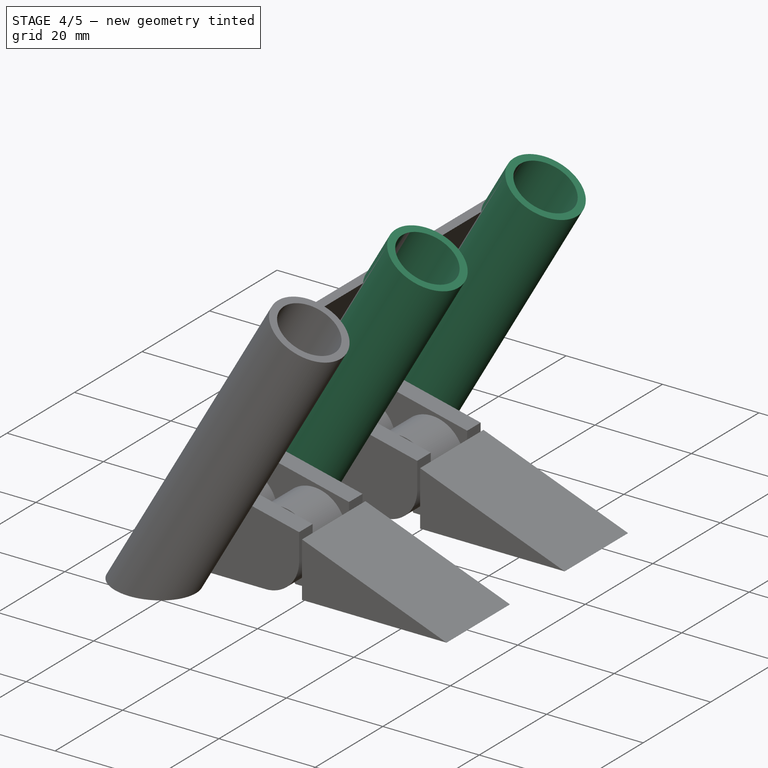
[diagram: stage 4 of 5 — iso view after this stage's code; geometry added in this stage tinted green]
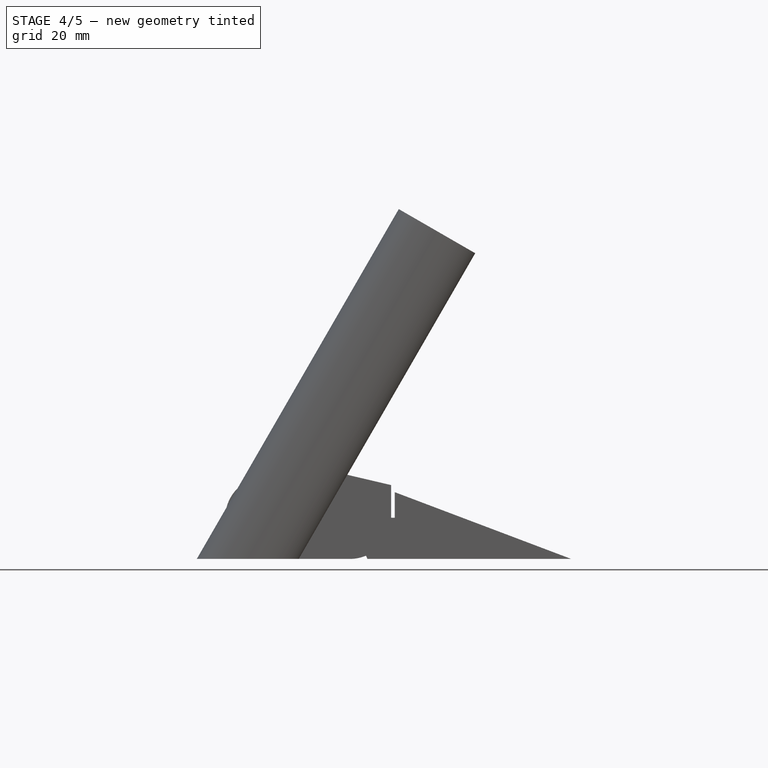
[diagram: stage 4 of 5 — front view after this stage's code; geometry added in this stage tinted green]
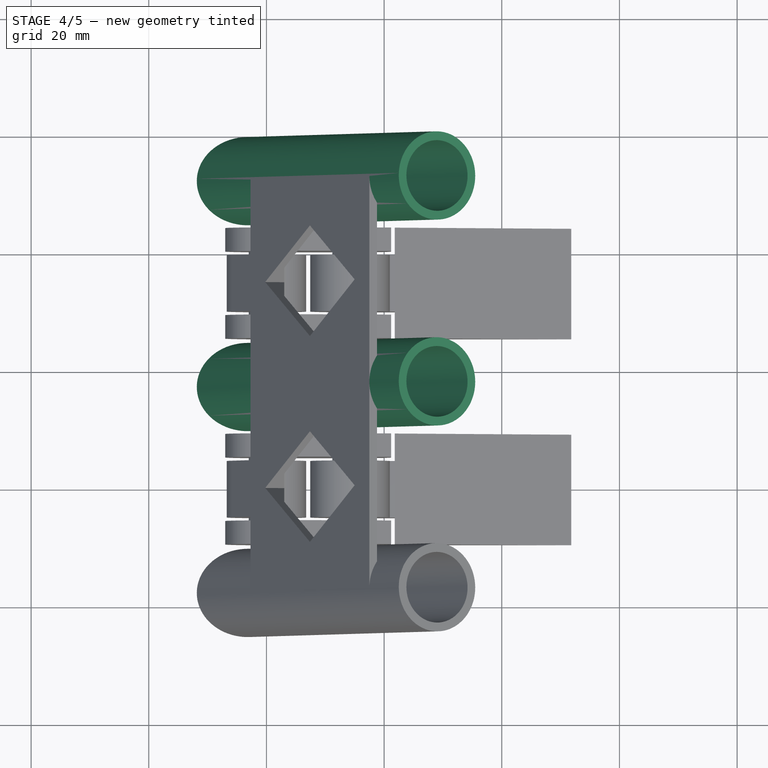
[diagram: stage 4 of 5 — top view after this stage's code; geometry added in this stage tinted green]
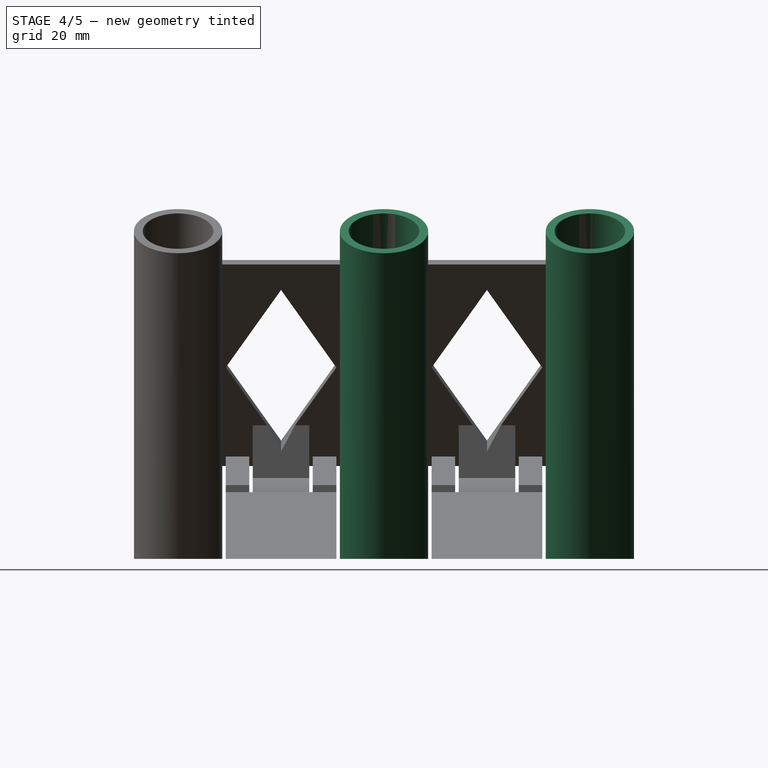
[diagram: stage 4 of 5 — right view after this stage's code; geometry added in this stage tinted green]
FEATURE [PartDesign::Pad] Pad026  label="TubePlugPad"
  BaseFeature = -> Pad025
  Direction = (0.5,0,0.866025)
  Length = 60
  Length2 = 10
  Profile = -> Sketch008 [Edge11,Edge10,Edge7,Edge6,Edge5,Edge3,Edge2,Edge4]
  ReferenceAxis = -> Sketch008 [N_Axis]
  Refine = true
  Reversed = true
  SideType = 0
  Suppressed = false
  Type = 0
  Type2 = 0
  expr: Length = <<params>>.TubeLength
FEATURE [PartDesign::Pocket] Pocket003  label="TubeCutoffPocket"
  BaseFeature = -> Pad026
  Direction = (0,1,-2e-16)
  Length = 5
  Length2 = 5
  Profile = -> Sketch009
  ReferenceAxis = -> Sketch009 [N_Axis]
  Refine = true
  Reversed = true
  SideType = 2
  Suppressed = false
  Type = 1
  Type2 = 0
FEATURE [PartDesign::LinearPattern] LinearPattern005  label="TubeLinearPattern"
  BaseFeature = -> Pocket003
  Direction = -> Sketch008 [V_Axis]
  Direction2 = -> Sketch008 [V_Axis]
  Length = 70
  Length2 = 100
  Mode = 1
  Mode2 = 0
  Occurrences = 3
  Occurrences2 = 1
  Offset = 35
  Offset2 = 100
  Originals = -> [Pad025,Pad026,Pocket003]
  Refine = true
  Reversed2 = false
  SpacingPattern = [35]
  SpacingPattern2 = [0]
  Spacings = [-1,-1]
  Suppressed = false
  TransformMode = 0
  expr: Occurrences = <<params>>.NumberOfTubes
  expr: Offset = <<params>>.TubeSeparationDistance
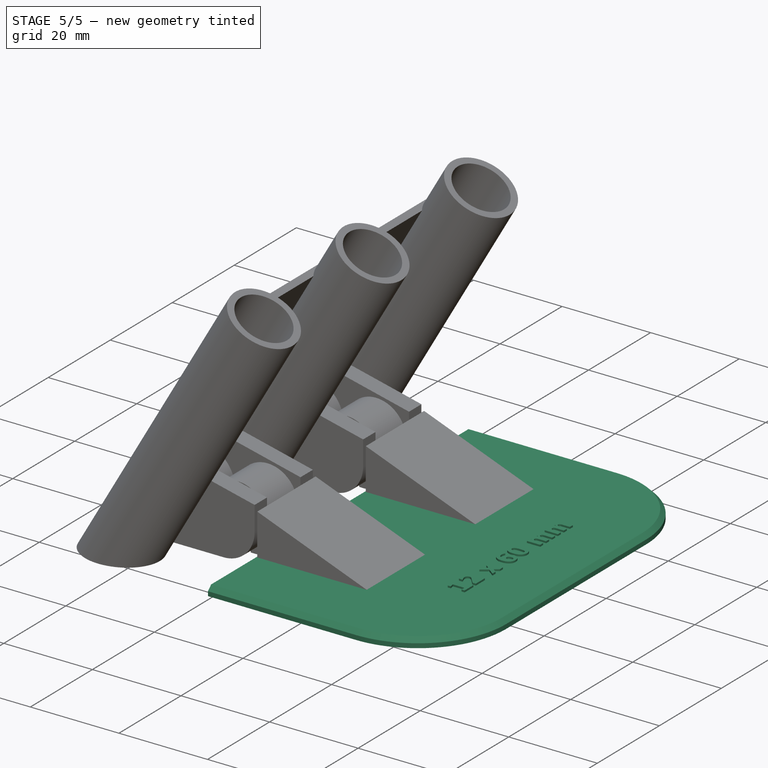
[diagram: stage 5 of 5 — iso view after this stage's code; geometry added in this stage tinted green]
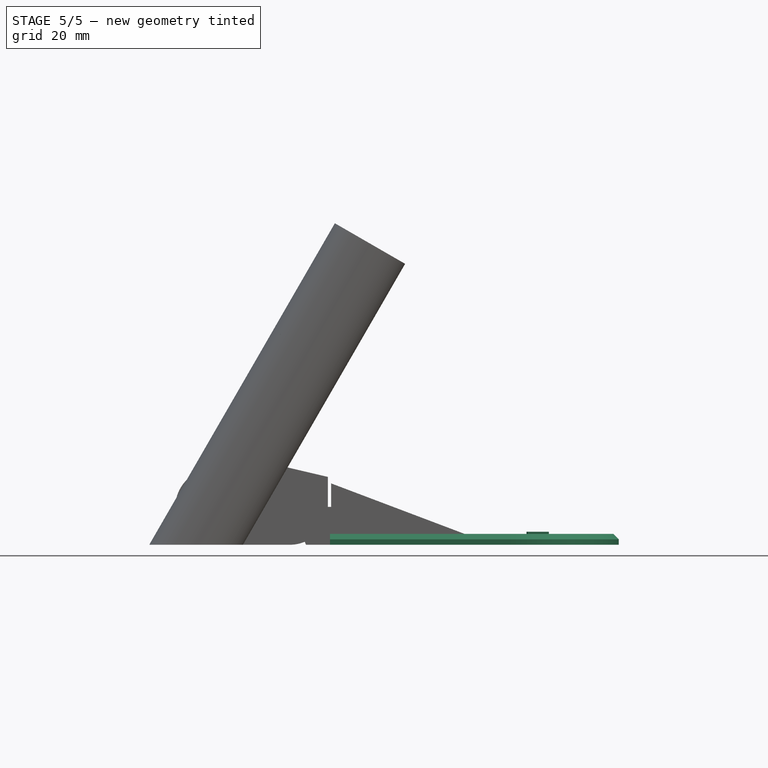
[diagram: stage 5 of 5 — front view after this stage's code; geometry added in this stage tinted green]
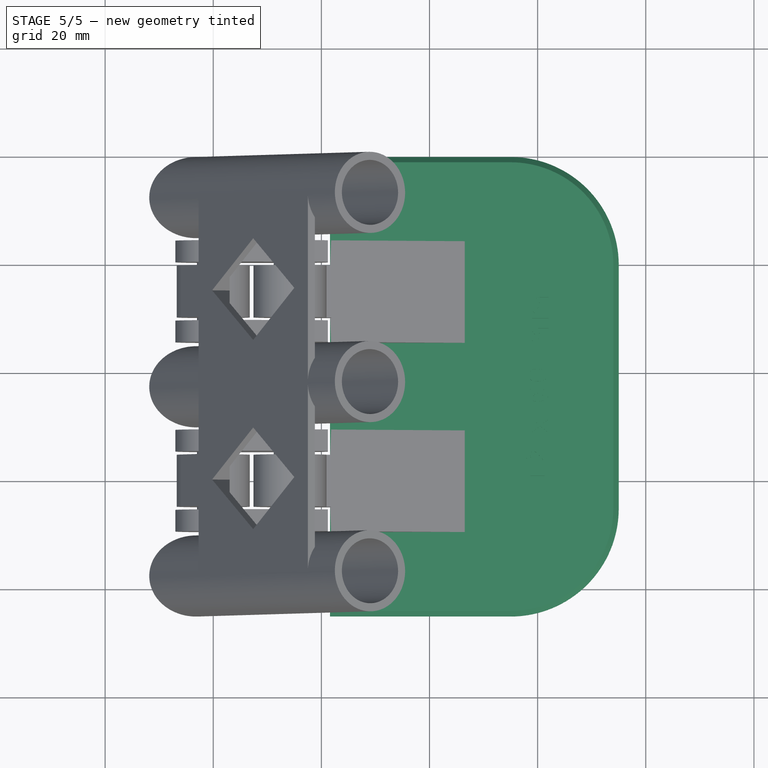
[diagram: stage 5 of 5 — top view after this stage's code; geometry added in this stage tinted green]
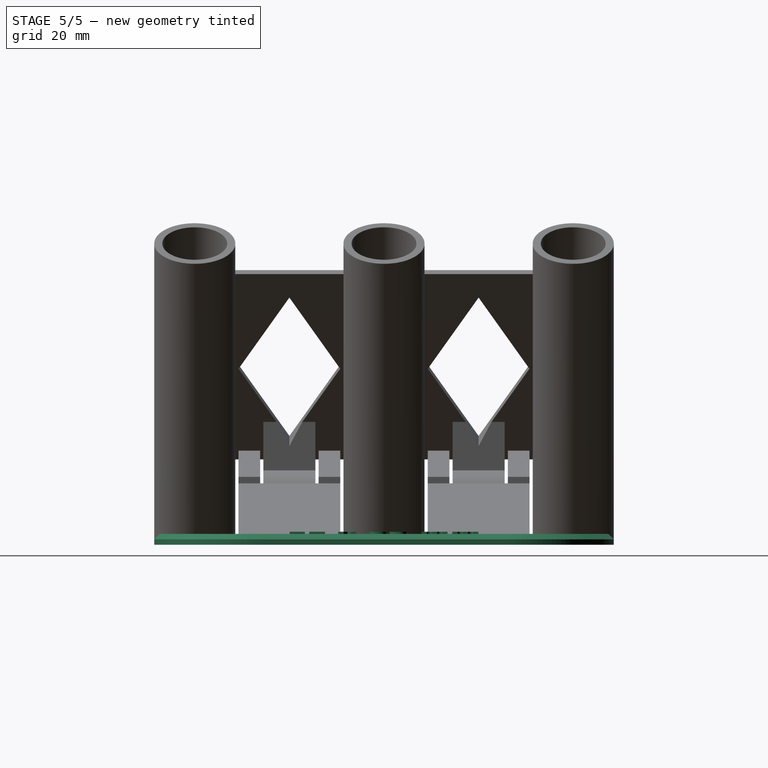
[diagram: stage 5 of 5 — right view after this stage's code; geometry added in this stage tinted green]
FEATURE [PartDesign::Pad] Pad008  label="BasePad"
  BaseFeature = -> LinearPattern005
  Direction = (0,0,1)
  Length = 2
  Length2 = 10
  Profile = -> Sketch003
  ReferenceAxis = -> Sketch003 [N_Axis]
  Refine = true
  SideType = 0
  Suppressed = false
  Type = 0
  Type2 = 0
  expr: Length = <<params>>.BaseThickness
FEATURE [PartDesign::Chamfer] Chamfer  label="BaseChamfer"
  Angle = 45
  Base = -> Pad008 [Edge30]
  BaseFeature = -> Pad008
  ChamferType = 0
  FlipDirection = false
  Refine = true
  Size = 1
  Size2 = 1
  SupportTransform = false
  Suppressed = false
  UseAllEdges = false
FEATURE [PartDesign::Pad] Pad027  label="LabelPad"
  BaseFeature = -> Chamfer
  Direction = (0,0,1)
  Length = 0.4
  Length2 = 10
  Profile = -> ShapeString
  ReferenceAxis = -> ShapeString [N_Axis]
  Refine = true
  SideType = 0
  Suppressed = false
  Type = 0
  Type2 = 0
  expr: Length = <<params>>.TitleHeight
FEATURE [PartDesign::Body] Body
  AllowCompound = true
  Group = -> [Sketch001,Binder003,Binder004,Binder005,Pad,Pad020,Pad021,DatumPlane,Pad022,Pad023,Pad024,Sketch007,Pocket002,Sketch008,LinearPattern004,Pad025,Pad026,Sketch009,Pocket003,Sketch003,LinearPattern005,Pad008,Chamfer,ShapeString,Pad027]
  Model = 23
  Origin = -> Origin
  Tip = -> Pad027
  expr: .Model.Enum = Spreadsheet.cells[<<A13:|>>]
note: 1 file-system path scrubbed to <path> (originals preserved in the JSON sidecar)
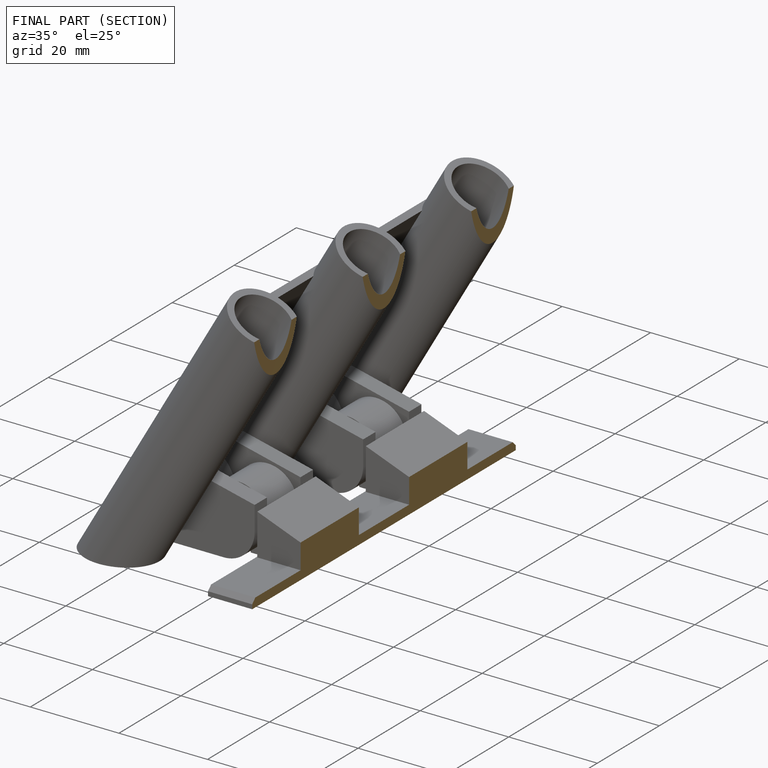
[diagram: finished part — half-section view (interior)]
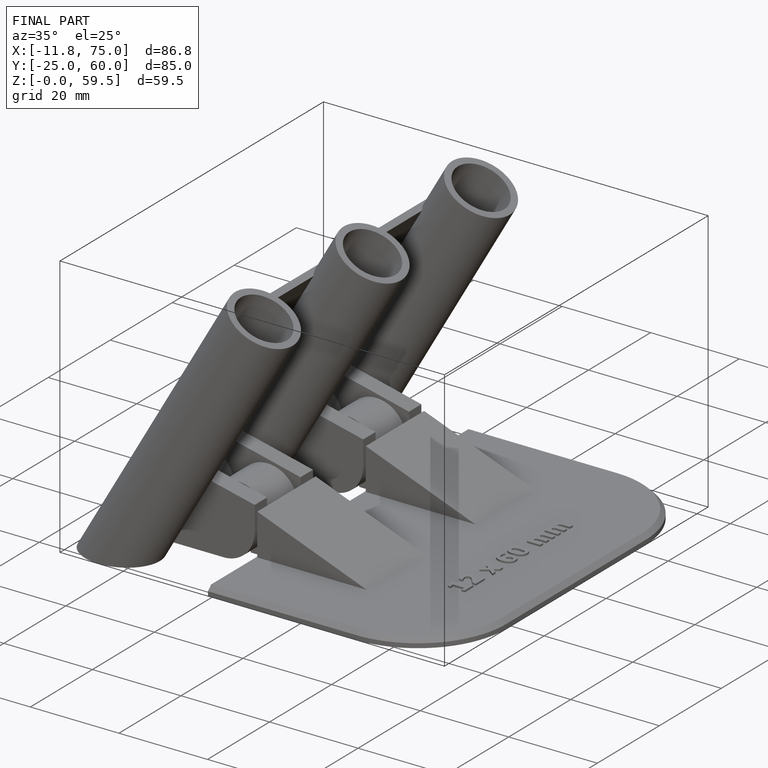
[diagram: finished part — iso view with bounding-box wireframe]
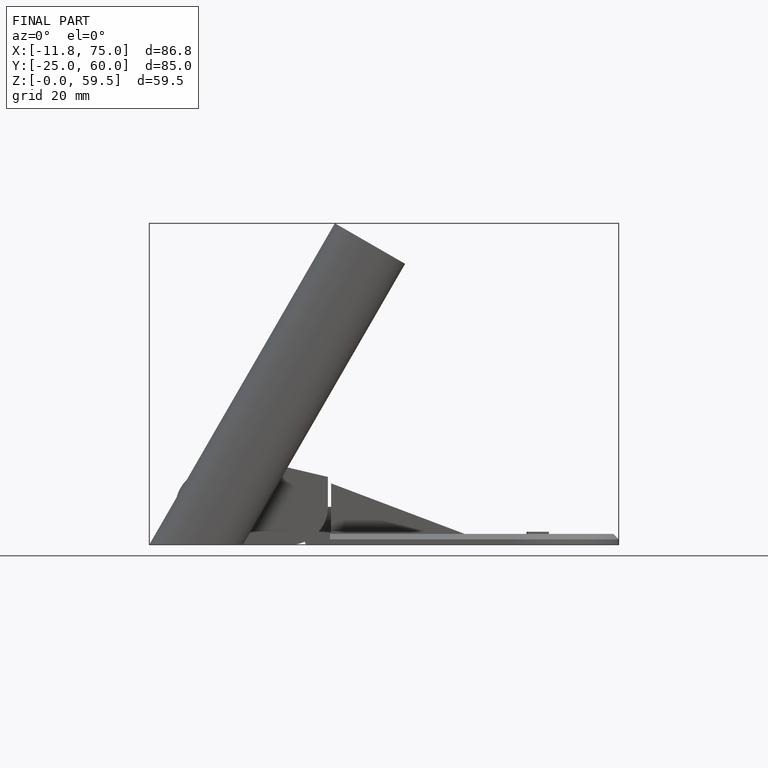
[diagram: finished part — front view with bounding-box wireframe]
